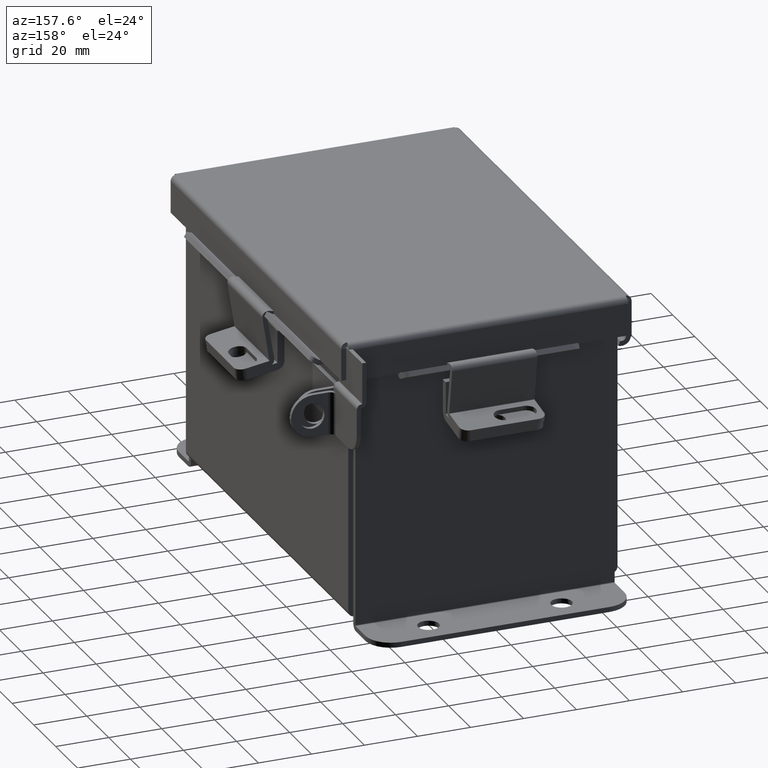
[diagram: clean part render]
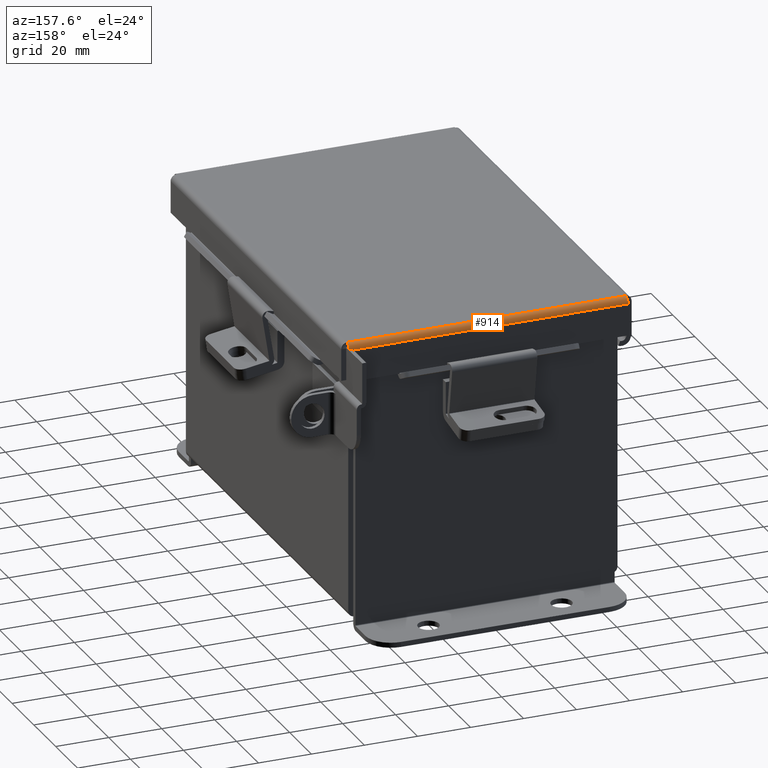
[diagram: same view with one face highlighted and labeled with its STEP entity id]
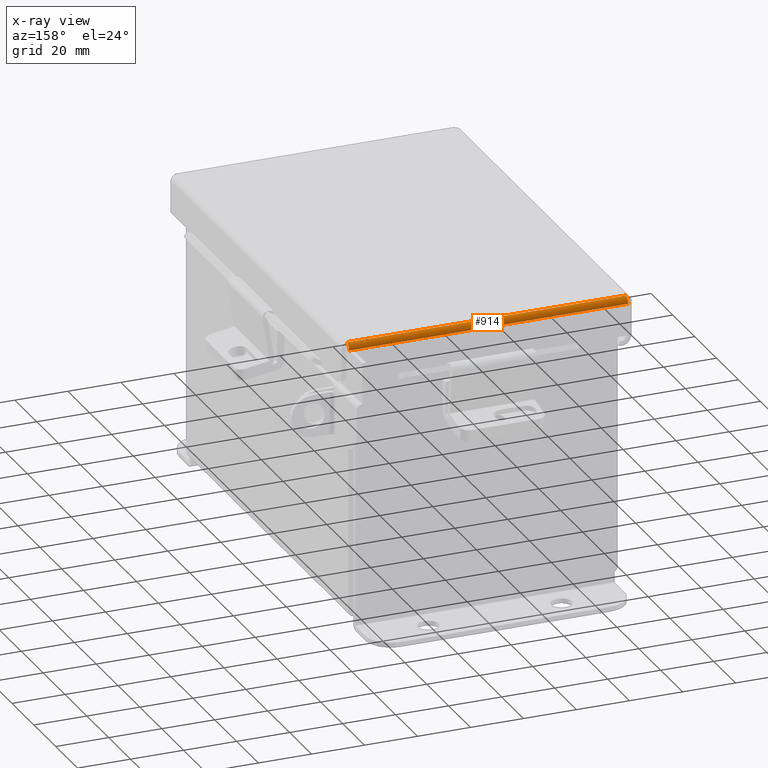
[diagram: x-ray of the same camera — body ghosted, the highlighted face saturated]
A machine part, auxiliary view. The second image highlights one B-rep face of the part: STEP entity #914.
The next image is the same camera in x-ray: the body ghosted, the highlighted face saturated — about 0% of this face is hidden behind the body in this view.
In plain terms, the highlighted cylindrical surface (edge-blend (fillet) strip) has radius 2.2276 mm, axis along (1, -0, 0).
Its self-contained STEP definition (entity closure, byte-faithful):
#219 = CARTESIAN_POINT ( 'NONE',  ( -2.071020388411723500, 3.122445747341799900, -0.05713078207832041800 ) ) ;
#324 = EDGE_CURVE ( 'NONE', #1236, #9286, #5461, .T. ) ;
#553 = B_SPLINE_CURVE_WITH_KNOTS ( 'NONE', 3,
 ( #11070, #1293, #5686, #13243, #6800, #219, #7854, #1346, #8951, #2456 ),
 .UNSPECIFIED., .F., .F.,
 ( 4, 2, 2, 2, 4 ),
 ( 0.0000000000000000000, 0.2500000000000000000, 0.5000000000000000000, 0.7500000000000000000, 1.000000000000000000 ),
 .UNSPECIFIED. ) ;
#836 = CARTESIAN_POINT ( 'NONE',  ( 2.072502621458757000, 3.145181066258668800, -0.03116738457852795100 ) ) ;
#914 = ADVANCED_FACE ( 'NONE', ( #2901 ), #7631, .T. ) ;
#1236 = VERTEX_POINT ( 'NONE', #3477 ) ;
#1293 = CARTESIAN_POINT ( 'NONE',  ( -2.073984854505791300, 3.156249999999998700, 0.001520096845007165000 ) ) ;
#1346 = CARTESIAN_POINT ( 'NONE',  ( -2.069538155364690100, 3.091505289458308200, -0.07241740374381125400 ) ) ;
#1428 = CARTESIAN_POINT ( 'NONE',  ( 2.074478932188134700, 3.156250000000000000, 0.01299999999999985900 ) ) ;
#1946 = CARTESIAN_POINT ( 'NONE',  ( 2.073984854505790400, 3.156250000000000000, 0.001520096845007165400 ) ) ;
#2456 = CARTESIAN_POINT ( 'NONE',  ( -2.068550000000001000, 3.068549999999999700, -0.07469999999999994700 ) ) ;
#2535 = B_SPLINE_CURVE_WITH_KNOTS ( 'NONE', 3,
 ( #11672, #11622, #12756, #6299, #13835, #7372, #836, #8455, #1946, #9549 ),
 .UNSPECIFIED., .F., .F.,
 ( 4, 2, 2, 2, 4 ),
 ( 0.0000000000000000000, 0.2500000000000000000, 0.5000000000000000000, 0.7500000000000000000, 1.000000000000000000 ),
 .UNSPECIFIED. ) ;
#2571 = VECTOR ( 'NONE', #4794, 39.37007874015748100 ) ;
#2883 = DIRECTION ( 'NONE',  ( 1.000000000000000000, -5.326952210842322800E-032, 1.741613323795413600E-046 ) ) ;
#2901 = FACE_OUTER_BOUND ( 'NONE', #10186, .T. ) ;
#3477 = CARTESIAN_POINT ( 'NONE',  ( -2.068550000000001000, 3.068549999999999700, -0.07469999999999994700 ) ) ;
#4794 = DIRECTION ( 'NONE',  ( 1.000000000000000000, 0.0000000000000000000, 0.0000000000000000000 ) ) ;
#5170 = DIRECTION ( 'NONE',  ( -1.000000000000000000, -0.0000000000000000000, -0.0000000000000000000 ) ) ;
#5461 = LINE ( 'NONE', #5880, #2571 ) ;
#5686 = CARTESIAN_POINT ( 'NONE',  ( -2.073490776823447000, 3.153967403743811000, -0.009955289458308987100 ) ) ;
#5880 = CARTESIAN_POINT ( 'NONE',  ( -2.074478932188136100, 3.068549999999999700, -0.07469999999999994700 ) ) ;
#6033 = ORIENTED_EDGE ( 'NONE', *, *, #10356, .T. ) ;
#6249 = CARTESIAN_POINT ( 'NONE',  ( -2.074478932188136100, 3.068549999999999700, 0.01300000000000015000 ) ) ;
#6299 = CARTESIAN_POINT ( 'NONE',  ( 2.070526310729377900, 3.112717384578527600, -0.06363106625866839200 ) ) ;
#6800 = CARTESIAN_POINT ( 'NONE',  ( -2.072008543776413100, 3.138680782078319800, -0.04089574734180007700 ) ) ;
#7338 = DIRECTION ( 'NONE',  ( 0.0000000000000000000, 1.000000000000000000, -3.358350761880586900E-015 ) ) ;
#7372 = CARTESIAN_POINT ( 'NONE',  ( 2.072008543776412600, 3.138680782078320700, -0.04089574734180008400 ) ) ;
#7552 = EDGE_CURVE ( 'NONE', #11708, #1236, #553, .T. ) ;
#7631 = CYLINDRICAL_SURFACE ( 'NONE', #10943, 0.08770000000000026400 ) ;
#7854 = CARTESIAN_POINT ( 'NONE',  ( -2.070526310729379200, 3.112717384578527200, -0.06363106625866842000 ) ) ;
#8455 = CARTESIAN_POINT ( 'NONE',  ( 2.073490776823446100, 3.153967403743811000, -0.009955289458308985400 ) ) ;
#8727 = CARTESIAN_POINT ( 'NONE',  ( 2.068549999999999700, 3.068550000000000100, -0.07470000000000059900 ) ) ;
#8951 = CARTESIAN_POINT ( 'NONE',  ( -2.069044077682345300, 3.080029903154991800, -0.07469999999999994700 ) ) ;
#9286 = VERTEX_POINT ( 'NONE', #8727 ) ;
#9549 = CARTESIAN_POINT ( 'NONE',  ( 2.074478932188134700, 3.156250000000000000, 0.01299999999999985900 ) ) ;
#9676 = VECTOR ( 'NONE', #2883, 39.37007874015748100 ) ;
#10132 = VERTEX_POINT ( 'NONE', #1428 ) ;
#10186 = EDGE_LOOP ( 'NONE', ( #10312, #13961, #6033, #11673 ) ) ;
#10312 = ORIENTED_EDGE ( 'NONE', *, *, #324, .F. ) ;
#10356 = EDGE_CURVE ( 'NONE', #11708, #10132, #12196, .T. ) ;
#10610 = CARTESIAN_POINT ( 'NONE',  ( -2.074478932188136100, 3.156250000000000000, 0.01299999999999986400 ) ) ;
#10943 = AXIS2_PLACEMENT_3D ( 'NONE', #6249, #5170, #7338 ) ;
#11070 = CARTESIAN_POINT ( 'NONE',  ( -2.074478932188136100, 3.156250000000000000, 0.01299999999999986400 ) ) ;
#11622 = CARTESIAN_POINT ( 'NONE',  ( 2.069044077682344400, 3.080029903154992700, -0.07469999999999994700 ) ) ;
#11672 = CARTESIAN_POINT ( 'NONE',  ( 2.068549999999999700, 3.068550000000000100, -0.07470000000000059900 ) ) ;
#11673 = ORIENTED_EDGE ( 'NONE', *, *, #12866, .F. ) ;
#11708 = VERTEX_POINT ( 'NONE', #10610 ) ;
#12196 = LINE ( 'NONE', #12630, #9676 ) ;
#12630 = CARTESIAN_POINT ( 'NONE',  ( 2.156249999999999100, 3.156250000000000000, 0.01299999999999986400 ) ) ;
#12756 = CARTESIAN_POINT ( 'NONE',  ( 2.069538155364689700, 3.091505289458309500, -0.07241740374381124000 ) ) ;
#12866 = EDGE_CURVE ( 'NONE', #9286, #10132, #2535, .T. ) ;
#13243 = CARTESIAN_POINT ( 'NONE',  ( -2.072502621458757000, 3.145181066258668300, -0.03116738457852794700 ) ) ;
#13835 = CARTESIAN_POINT ( 'NONE',  ( 2.071020388411723100, 3.122445747341799900, -0.05713078207832042500 ) ) ;
#13961 = ORIENTED_EDGE ( 'NONE', *, *, #7552, .F. ) ;